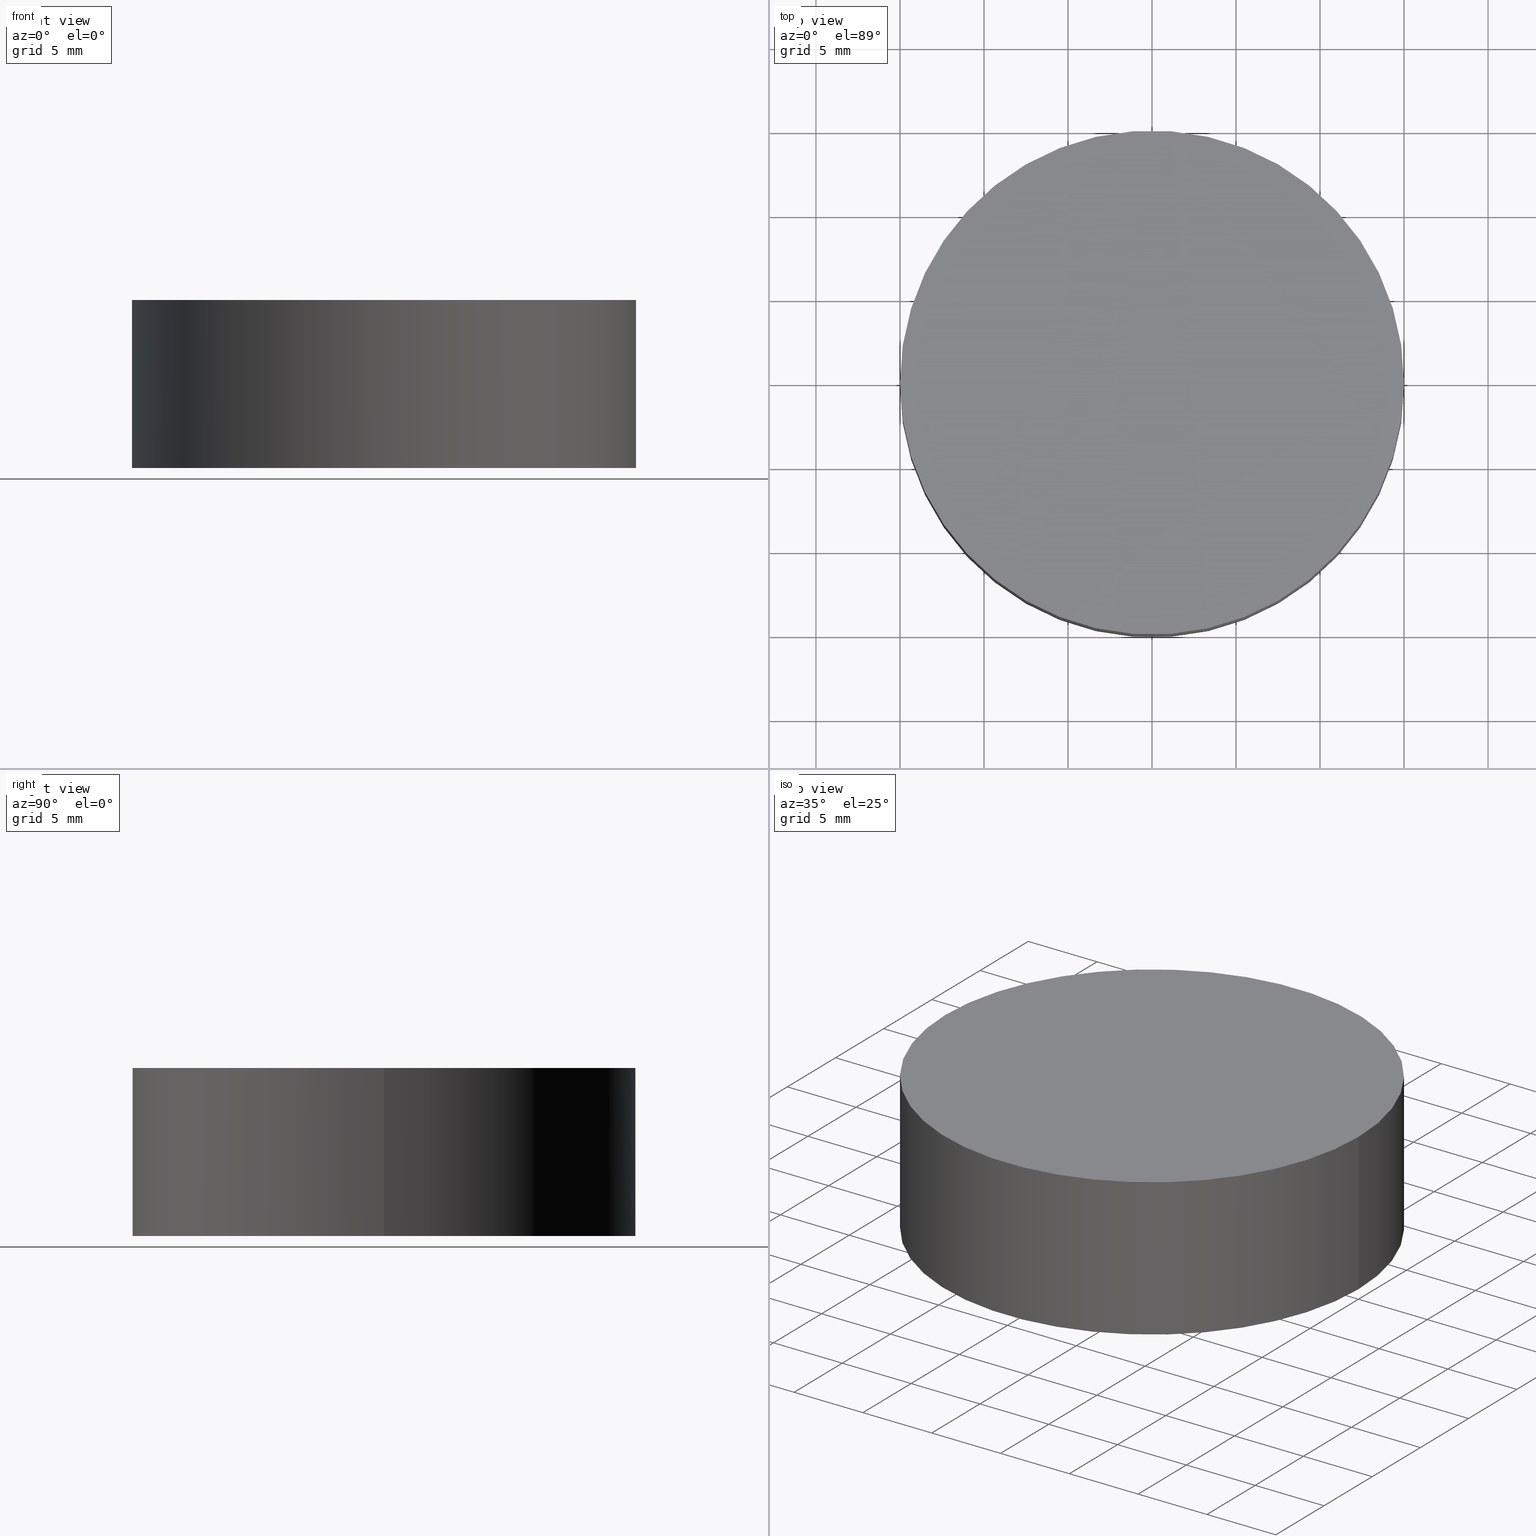
[diagram: canonical four-view strip — front | top / right | iso, engineering-drawing reading convention]
A machine part, canonical four-view strip (front | top / right | iso — engineering-drawing reading convention). The complete STEP part file that produces these views, byte-faithful:
ISO-10303-21;
HEADER;
FILE_DESCRIPTION (( 'STEP AP214' ),
    '1' );
FILE_NAME ('190062.STEP',
    '2019-07-16T03:38:02',
    ( 'user' ),
    ( '΢���й�' ),
    'SwSTEP 2.0',
    'SolidWorks 2016',
    '' );
FILE_SCHEMA (( 'AUTOMOTIVE_DESIGN' ));
ENDSEC;

DATA;
#1 = DIRECTION ( 'NONE',  ( 0.0000000000000000000, 0.0000000000000000000, 1.000000000000000000 ) ) ;
#2 = PRODUCT_CONTEXT ( 'NONE', #135, 'mechanical' ) ;
#3 = ORIENTED_EDGE ( 'NONE', *, *, #22, .F. ) ;
#4 = ORIENTED_EDGE ( 'NONE', *, *, #27, .T. ) ;
#5 = PRESENTATION_LAYER_ASSIGNMENT (  '', '', ( #130 ) ) ;
#6 = CARTESIAN_POINT ( 'NONE',  ( 0.0000000000000000000, 0.0000000000000000000, 10.00000000000000000 ) ) ;
#7 = ADVANCED_BREP_SHAPE_REPRESENTATION ( '190062', ( #120, #50 ), #43 ) ;
#8 = DIRECTION ( 'NONE',  ( 1.000000000000000000, 0.0000000000000000000, 0.0000000000000000000 ) ) ;
#9 = ORIENTED_EDGE ( 'NONE', *, *, #85, .F. ) ;
#10 = DIRECTION ( 'NONE',  ( -1.000000000000000000, 0.0000000000000000000, 0.0000000000000000000 ) ) ;
#11 = VERTEX_POINT ( 'NONE', #39 ) ;
#12 = SURFACE_STYLE_FILL_AREA ( #56 ) ;
#13 = PRODUCT ( '190062', '190062', '', ( #2 ) ) ;
#14 = FACE_OUTER_BOUND ( 'NONE', #42, .T. ) ;
#15 = MECHANICAL_DESIGN_GEOMETRIC_PRESENTATION_REPRESENTATION (  '', ( #130 ), #23 ) ;
#16 = APPLICATION_CONTEXT ( 'automotive_design' ) ;
#17 = CIRCLE ( 'NONE', #114, 15.00000000000000000 ) ;
#18 = DIRECTION ( 'NONE',  ( 0.0000000000000000000, 0.0000000000000000000, 1.000000000000000000 ) ) ;
#19 = CARTESIAN_POINT ( 'NONE',  ( 0.0000000000000000000, 0.0000000000000000000, 0.0000000000000000000 ) ) ;
#20 = CARTESIAN_POINT ( 'NONE',  ( 15.00000000000000000, 1.836970198721029600E-015, 10.00000000000000000 ) ) ;
#21 = CARTESIAN_POINT ( 'NONE',  ( 0.0000000000000000000, 0.0000000000000000000, 10.00000000000000000 ) ) ;
#22 = EDGE_CURVE ( 'NONE', #60, #63, #111, .T. ) ;
#23 =( GEOMETRIC_REPRESENTATION_CONTEXT ( 3 ) GLOBAL_UNCERTAINTY_ASSIGNED_CONTEXT ( ( #132 ) ) GLOBAL_UNIT_ASSIGNED_CONTEXT ( ( #76, #41, #110 ) ) REPRESENTATION_CONTEXT ( 'NONE', 'WORKASPACE' ) );
#24 = ADVANCED_FACE ( 'NONE', ( #14 ), #59, .T. ) ;
#25 = COLOUR_RGB ( '',1.000000000000000000, 1.000000000000000000, 1.000000000000000000 ) ;
#26 =( NAMED_UNIT ( * ) SI_UNIT ( $, .STERADIAN. ) SOLID_ANGLE_UNIT ( ) );
#27 = EDGE_CURVE ( 'NONE', #60, #11, #75, .T. ) ;
#28 = AXIS2_PLACEMENT_3D ( 'NONE', #126, #94, #109 ) ;
#29 = PLANE ( 'NONE',  #140 ) ;
#30 = DIRECTION ( 'NONE',  ( 0.0000000000000000000, 0.0000000000000000000, 1.000000000000000000 ) ) ;
#31 = PRESENTATION_STYLE_ASSIGNMENT (( #89 ) ) ;
#32 = ORIENTED_EDGE ( 'NONE', *, *, #127, .F. ) ;
#33 =( GEOMETRIC_REPRESENTATION_CONTEXT ( 3 ) GLOBAL_UNCERTAINTY_ASSIGNED_CONTEXT ( ( #98 ) ) GLOBAL_UNIT_ASSIGNED_CONTEXT ( ( #38, #106, #26 ) ) REPRESENTATION_CONTEXT ( 'NONE', 'WORKASPACE' ) );
#34 = ORIENTED_EDGE ( 'NONE', *, *, #129, .F. ) ;
#35 = AXIS2_PLACEMENT_3D ( 'NONE', #80, #18, #71 ) ;
#36 = DIRECTION ( 'NONE',  ( 0.0000000000000000000, 0.0000000000000000000, 1.000000000000000000 ) ) ;
#37 = CLOSED_SHELL ( 'NONE', ( #77, #62, #24, #117 ) ) ;
#38 =( LENGTH_UNIT ( ) NAMED_UNIT ( * ) SI_UNIT ( .MILLI., .METRE. ) );
#39 = CARTESIAN_POINT ( 'NONE',  ( 15.00000000000000000, 1.836970198721029600E-015, 0.0000000000000000000 ) ) ;
#40 = EDGE_LOOP ( 'NONE', ( #3, #4, #91, #84 ) ) ;
#41 =( NAMED_UNIT ( * ) PLANE_ANGLE_UNIT ( ) SI_UNIT ( $, .RADIAN. ) );
#42 = EDGE_LOOP ( 'NONE', ( #86, #96 ) ) ;
#43 =( GEOMETRIC_REPRESENTATION_CONTEXT ( 3 ) GLOBAL_UNCERTAINTY_ASSIGNED_CONTEXT ( ( #44 ) ) GLOBAL_UNIT_ASSIGNED_CONTEXT ( ( #136, #124, #101 ) ) REPRESENTATION_CONTEXT ( 'NONE', 'WORKASPACE' ) );
#44 = UNCERTAINTY_MEASURE_WITH_UNIT (LENGTH_MEASURE( 1.000000000000000100E-005 ), #136, 'distance_accuracy_value', 'NONE');
#45 = FACE_OUTER_BOUND ( 'NONE', #65, .T. ) ;
#46 = SURFACE_SIDE_STYLE ('',( #12 ) ) ;
#47 = DIRECTION ( 'NONE',  ( -0.0000000000000000000, -0.0000000000000000000, -1.000000000000000000 ) ) ;
#48 = LINE ( 'NONE', #92, #93 ) ;
#49 = CIRCLE ( 'NONE', #28, 15.00000000000000000 ) ;
#50 = AXIS2_PLACEMENT_3D ( 'NONE', #54, #1, #88 ) ;
#51 = FACE_OUTER_BOUND ( 'NONE', #40, .T. ) ;
#52 = STYLED_ITEM ( 'NONE', ( #31 ), #7 ) ;
#53 = SURFACE_SIDE_STYLE ('',( #119 ) ) ;
#54 = CARTESIAN_POINT ( 'NONE',  ( 0.0000000000000000000, 0.0000000000000000000, 0.0000000000000000000 ) ) ;
#55 = ORIENTED_EDGE ( 'NONE', *, *, #127, .T. ) ;
#56 = FILL_AREA_STYLE ('',( #64 ) ) ;
#57 = DIRECTION ( 'NONE',  ( -0.0000000000000000000, -0.0000000000000000000, -1.000000000000000000 ) ) ;
#58 = PRODUCT_DEFINITION ( 'δ֪', '', #68, #66 ) ;
#59 = PLANE ( 'NONE',  #69 ) ;
#60 = VERTEX_POINT ( 'NONE', #20 ) ;
#61 = PRESENTATION_LAYER_ASSIGNMENT (  '', '', ( #52 ) ) ;
#62 = ADVANCED_FACE ( 'NONE', ( #45 ), #87, .T. ) ;
#63 = VERTEX_POINT ( 'NONE', #72 ) ;
#64 = FILL_AREA_STYLE_COLOUR ( '', #25 ) ;
#65 = EDGE_LOOP ( 'NONE', ( #123, #34, #113, #55 ) ) ;
#66 = PRODUCT_DEFINITION_CONTEXT ( 'detailed design', #16, 'design' ) ;
#67 = FILL_AREA_STYLE_COLOUR ( '', #83 ) ;
#68 = PRODUCT_DEFINITION_FORMATION_WITH_SPECIFIED_SOURCE ( '�κ�', '', #13, .NOT_KNOWN. ) ;
#69 = AXIS2_PLACEMENT_3D ( 'NONE', #107, #30, #95 ) ;
#70 = FACE_OUTER_BOUND ( 'NONE', #108, .T. ) ;
#71 = DIRECTION ( 'NONE',  ( 1.000000000000000000, 0.0000000000000000000, 0.0000000000000000000 ) ) ;
#72 = CARTESIAN_POINT ( 'NONE',  ( -15.00000000000000000, 0.0000000000000000000, 10.00000000000000000 ) ) ;
#73 = DIRECTION ( 'NONE',  ( 0.0000000000000000000, 0.0000000000000000000, 1.000000000000000000 ) ) ;
#74 = CARTESIAN_POINT ( 'NONE',  ( 15.00000000000000000, 1.836970198721029600E-015, 10.00000000000000000 ) ) ;
#75 = LINE ( 'NONE', #74, #99 ) ;
#76 =( LENGTH_UNIT ( ) NAMED_UNIT ( * ) SI_UNIT ( .MILLI., .METRE. ) );
#77 = ADVANCED_FACE ( 'NONE', ( #51 ), #139, .T. ) ;
#78 = PRODUCT_RELATED_PRODUCT_CATEGORY ( 'part', '', ( #13 ) ) ;
#79 = CARTESIAN_POINT ( 'NONE',  ( 0.0000000000000000000, 0.0000000000000000000, 10.00000000000000000 ) ) ;
#80 = CARTESIAN_POINT ( 'NONE',  ( 0.0000000000000000000, 0.0000000000000000000, 10.00000000000000000 ) ) ;
#81 = DIRECTION ( 'NONE',  ( 0.0000000000000000000, 0.0000000000000000000, 1.000000000000000000 ) ) ;
#82 = DIRECTION ( 'NONE',  ( -0.0000000000000000000, -0.0000000000000000000, -1.000000000000000000 ) ) ;
#83 = COLOUR_RGB ( '',1.000000000000000000, 1.000000000000000000, 1.000000000000000000 ) ;
#84 = ORIENTED_EDGE ( 'NONE', *, *, #138, .F. ) ;
#85 = EDGE_CURVE ( 'NONE', #11, #118, #17, .T. ) ;
#86 = ORIENTED_EDGE ( 'NONE', *, *, #129, .T. ) ;
#87 = CYLINDRICAL_SURFACE ( 'NONE', #104, 15.00000000000000000 ) ;
#88 = DIRECTION ( 'NONE',  ( 1.000000000000000000, 0.0000000000000000000, 0.0000000000000000000 ) ) ;
#89 = SURFACE_STYLE_USAGE ( .BOTH. , #53 ) ;
#90 = APPLICATION_PROTOCOL_DEFINITION ( 'draft international standard', 'automotive_design', 1998, #135 ) ;
#91 = ORIENTED_EDGE ( 'NONE', *, *, #85, .T. ) ;
#92 = CARTESIAN_POINT ( 'NONE',  ( -15.00000000000000000, 0.0000000000000000000, 10.00000000000000000 ) ) ;
#93 = VECTOR ( 'NONE', #112, 1000.000000000000000 ) ;
#94 = DIRECTION ( 'NONE',  ( 0.0000000000000000000, 0.0000000000000000000, 1.000000000000000000 ) ) ;
#95 = DIRECTION ( 'NONE',  ( 1.000000000000000000, 0.0000000000000000000, -0.0000000000000000000 ) ) ;
#96 = ORIENTED_EDGE ( 'NONE', *, *, #22, .T. ) ;
#97 = PRESENTATION_STYLE_ASSIGNMENT (( #131 ) ) ;
#98 = UNCERTAINTY_MEASURE_WITH_UNIT (LENGTH_MEASURE( 1.000000000000000100E-005 ), #38, 'distance_accuracy_value', 'NONE');
#99 = VECTOR ( 'NONE', #57, 1000.000000000000000 ) ;
#100 = AXIS2_PLACEMENT_3D ( 'NONE', #21, #36, #105 ) ;
#101 =( NAMED_UNIT ( * ) SI_UNIT ( $, .STERADIAN. ) SOLID_ANGLE_UNIT ( ) );
#102 = CARTESIAN_POINT ( 'NONE',  ( 0.0000000000000000000, 0.0000000000000000000, 0.0000000000000000000 ) ) ;
#103 = CIRCLE ( 'NONE', #35, 15.00000000000000000 ) ;
#104 = AXIS2_PLACEMENT_3D ( 'NONE', #79, #82, #128 ) ;
#105 = DIRECTION ( 'NONE',  ( 1.000000000000000000, 0.0000000000000000000, 0.0000000000000000000 ) ) ;
#106 =( NAMED_UNIT ( * ) PLANE_ANGLE_UNIT ( ) SI_UNIT ( $, .RADIAN. ) );
#107 = CARTESIAN_POINT ( 'NONE',  ( 0.0000000000000000000, 0.0000000000000000000, 10.00000000000000000 ) ) ;
#108 = EDGE_LOOP ( 'NONE', ( #32, #9 ) ) ;
#109 = DIRECTION ( 'NONE',  ( 1.000000000000000000, 0.0000000000000000000, 0.0000000000000000000 ) ) ;
#110 =( NAMED_UNIT ( * ) SI_UNIT ( $, .STERADIAN. ) SOLID_ANGLE_UNIT ( ) );
#111 = CIRCLE ( 'NONE', #100, 15.00000000000000000 ) ;
#112 = DIRECTION ( 'NONE',  ( -0.0000000000000000000, -0.0000000000000000000, -1.000000000000000000 ) ) ;
#113 = ORIENTED_EDGE ( 'NONE', *, *, #138, .T. ) ;
#114 = AXIS2_PLACEMENT_3D ( 'NONE', #19, #81, #8 ) ;
#115 = SHAPE_DEFINITION_REPRESENTATION ( #116, #7 ) ;
#116 = PRODUCT_DEFINITION_SHAPE ( 'NONE', 'NONE',  #58 ) ;
#117 = ADVANCED_FACE ( 'NONE', ( #70 ), #29, .F. ) ;
#118 = VERTEX_POINT ( 'NONE', #133 ) ;
#119 = SURFACE_STYLE_FILL_AREA ( #122 ) ;
#120 = MANIFOLD_SOLID_BREP ( '͹̨-����1', #37 ) ;
#121 = MECHANICAL_DESIGN_GEOMETRIC_PRESENTATION_REPRESENTATION (  '', ( #52 ), #33 ) ;
#122 = FILL_AREA_STYLE ('',( #67 ) ) ;
#123 = ORIENTED_EDGE ( 'NONE', *, *, #27, .F. ) ;
#124 =( NAMED_UNIT ( * ) PLANE_ANGLE_UNIT ( ) SI_UNIT ( $, .RADIAN. ) );
#125 = AXIS2_PLACEMENT_3D ( 'NONE', #6, #47, #10 ) ;
#126 = CARTESIAN_POINT ( 'NONE',  ( 0.0000000000000000000, 0.0000000000000000000, 0.0000000000000000000 ) ) ;
#127 = EDGE_CURVE ( 'NONE', #118, #11, #49, .T. ) ;
#128 = DIRECTION ( 'NONE',  ( -1.000000000000000000, 0.0000000000000000000, 0.0000000000000000000 ) ) ;
#129 = EDGE_CURVE ( 'NONE', #63, #60, #103, .T. ) ;
#130 = STYLED_ITEM ( 'NONE', ( #97 ), #120 ) ;
#131 = SURFACE_STYLE_USAGE ( .BOTH. , #46 ) ;
#132 = UNCERTAINTY_MEASURE_WITH_UNIT (LENGTH_MEASURE( 1.000000000000000100E-005 ), #76, 'distance_accuracy_value', 'NONE');
#133 = CARTESIAN_POINT ( 'NONE',  ( -15.00000000000000000, 0.0000000000000000000, 0.0000000000000000000 ) ) ;
#134 = APPLICATION_PROTOCOL_DEFINITION ( 'draft international standard', 'automotive_design', 1998, #16 ) ;
#135 = APPLICATION_CONTEXT ( 'automotive_design' ) ;
#136 =( LENGTH_UNIT ( ) NAMED_UNIT ( * ) SI_UNIT ( .MILLI., .METRE. ) );
#137 = DIRECTION ( 'NONE',  ( 1.000000000000000000, 0.0000000000000000000, -0.0000000000000000000 ) ) ;
#138 = EDGE_CURVE ( 'NONE', #63, #118, #48, .T. ) ;
#139 = CYLINDRICAL_SURFACE ( 'NONE', #125, 15.00000000000000000 ) ;
#140 = AXIS2_PLACEMENT_3D ( 'NONE', #102, #73, #137 ) ;
ENDSEC;
END-ISO-10303-21;
